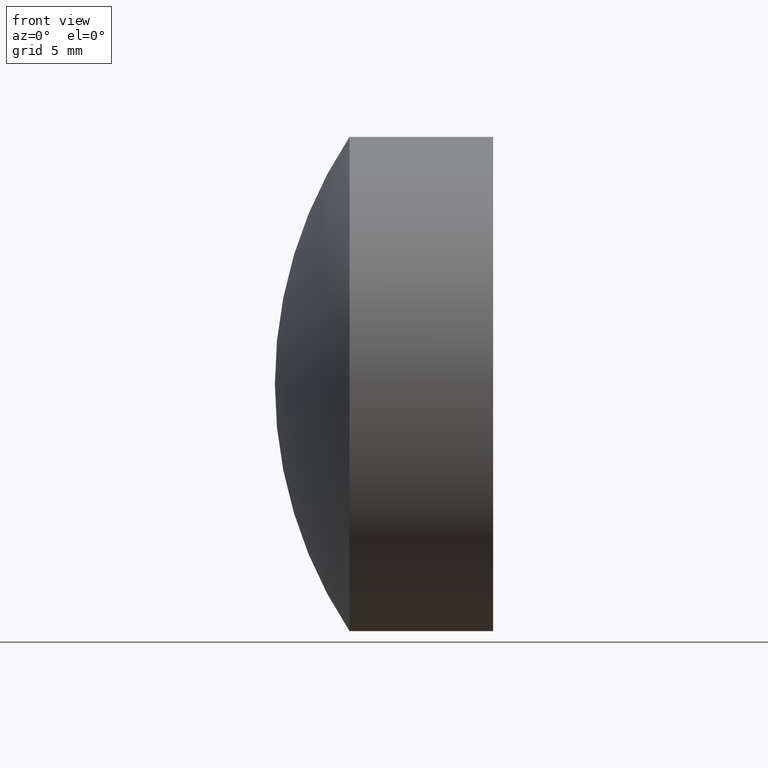
[diagram: clean part render]
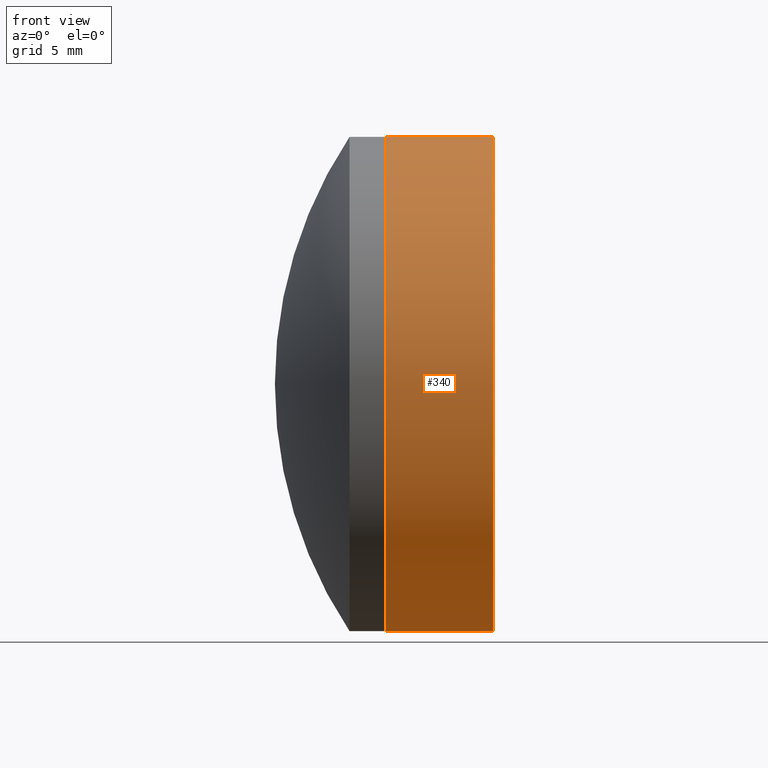
[diagram: same view with one face highlighted and labeled with its STEP entity id]
A machine part, front view. The second image highlights one B-rep face of the part: STEP entity #340.
In plain terms, the highlighted cylindrical surface (partial cylindrical patch) has radius 12.7 mm, axis along (-1, -0, -0).
Its self-contained STEP definition (entity closure, byte-faithful):
#4 = ORIENTED_EDGE ( 'NONE', *, *, #281, .T. ) ;
#12 = ORIENTED_EDGE ( 'NONE', *, *, #134, .F. ) ;
#21 = CARTESIAN_POINT ( 'NONE',  ( 37.62897246326266300, 0.0000000000000000000, 0.0000000000000000000 ) ) ;
#32 = AXIS2_PLACEMENT_3D ( 'NONE', #144, #132, #152 ) ;
#45 = AXIS2_PLACEMENT_3D ( 'NONE', #259, #185, #327 ) ;
#54 = AXIS2_PLACEMENT_3D ( 'NONE', #21, #121, #78 ) ;
#57 = EDGE_CURVE ( 'NONE', #255, #176, #266, .T. ) ;
#70 = CARTESIAN_POINT ( 'NONE',  ( 43.17435840764294100, -1.555301434917158400E-015, 12.70000000000016300 ) ) ;
#73 = CARTESIAN_POINT ( 'NONE',  ( 37.62897246326266300, 0.0000000000000000000, 12.69999999999999600 ) ) ;
#77 = VERTEX_POINT ( 'NONE', #70 ) ;
#78 = DIRECTION ( 'NONE',  ( 0.0000000000000000000, 0.0000000000000000000, 1.000000000000000000 ) ) ;
#85 = CYLINDRICAL_SURFACE ( 'NONE', #32, 12.69999999999999600 ) ;
#100 = FACE_OUTER_BOUND ( 'NONE', #329, .T. ) ;
#116 = ORIENTED_EDGE ( 'NONE', *, *, #57, .F. ) ;
#121 = DIRECTION ( 'NONE',  ( -1.000000000000000000, -0.0000000000000000000, -0.0000000000000000000 ) ) ;
#123 = VECTOR ( 'NONE', #249, 1000.000000000000000 ) ;
#132 = DIRECTION ( 'NONE',  ( -1.000000000000000000, -0.0000000000000000000, -0.0000000000000000000 ) ) ;
#133 = ORIENTED_EDGE ( 'NONE', *, *, #184, .T. ) ;
#134 = EDGE_CURVE ( 'NONE', #176, #168, #305, .T. ) ;
#144 = CARTESIAN_POINT ( 'NONE',  ( -0.5519199926577972300, 0.0000000000000000000, 0.0000000000000000000 ) ) ;
#152 = DIRECTION ( 'NONE',  ( 0.0000000000000000000, 0.0000000000000000000, 1.000000000000000000 ) ) ;
#156 = VECTOR ( 'NONE', #301, 1000.000000000000000 ) ;
#168 = VERTEX_POINT ( 'NONE', #73 ) ;
#176 = VERTEX_POINT ( 'NONE', #201 ) ;
#179 = CARTESIAN_POINT ( 'NONE',  ( -0.5519199926577972300, 0.0000000000000000000, 12.69999999999999600 ) ) ;
#184 = EDGE_CURVE ( 'NONE', #255, #77, #251, .T. ) ;
#185 = DIRECTION ( 'NONE',  ( -1.000000000000000000, -0.0000000000000000000, -0.0000000000000000000 ) ) ;
#201 = CARTESIAN_POINT ( 'NONE',  ( 37.62897246326266300, 1.555301434917138000E-015, -12.69999999999999600 ) ) ;
#219 = LINE ( 'NONE', #179, #156 ) ;
#249 = DIRECTION ( 'NONE',  ( -1.000000000000000000, -0.0000000000000000000, -0.0000000000000000000 ) ) ;
#251 = CIRCLE ( 'NONE', #45, 12.69999999999999600 ) ;
#255 = VERTEX_POINT ( 'NONE', #335 ) ;
#259 = CARTESIAN_POINT ( 'NONE',  ( 43.17435840764293400, 0.0000000000000000000, 0.0000000000000000000 ) ) ;
#264 = CARTESIAN_POINT ( 'NONE',  ( -0.5519199926577972300, 1.555301434917138000E-015, -12.69999999999999600 ) ) ;
#266 = LINE ( 'NONE', #264, #123 ) ;
#281 = EDGE_CURVE ( 'NONE', #77, #168, #219, .T. ) ;
#301 = DIRECTION ( 'NONE',  ( -1.000000000000000000, -0.0000000000000000000, -0.0000000000000000000 ) ) ;
#305 = CIRCLE ( 'NONE', #54, 12.69999999999999600 ) ;
#327 = DIRECTION ( 'NONE',  ( 0.0000000000000000000, 0.0000000000000000000, 1.000000000000000000 ) ) ;
#329 = EDGE_LOOP ( 'NONE', ( #116, #133, #4, #12 ) ) ;
#335 = CARTESIAN_POINT ( 'NONE',  ( 43.17435840764294100, 0.0000000000000000000, -12.70000000000016300 ) ) ;
#340 = ADVANCED_FACE ( 'NONE', ( #100 ), #85, .T. ) ;